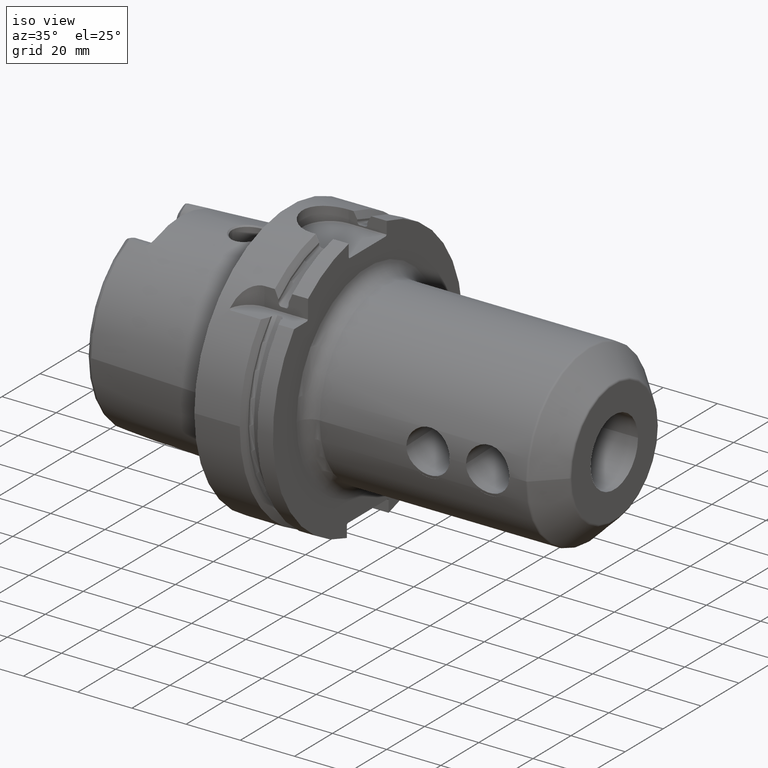
[diagram: clean part render]
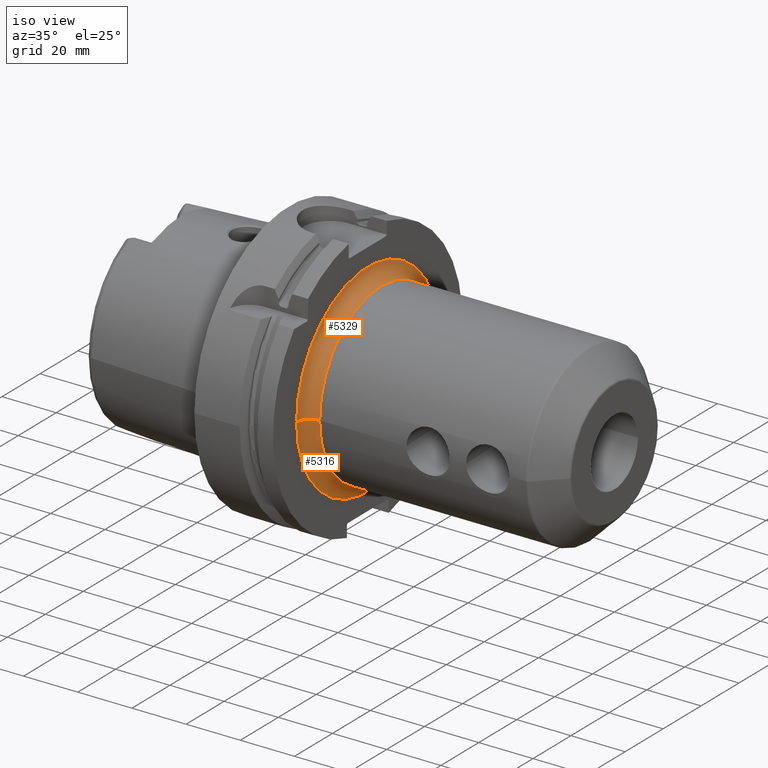
[diagram: same view with one multi-face feature highlighted, each face labeled with its STEP entity id]
A machine part, iso view. The highlighted faces form ONE feature: a constant-radius fillet chain: 2 tangent blend faces with common blend radius 5 mm. The faces share edges in the B-rep.
Their STEP definitions:
[1] entity #5329 (Torus):
#1096=CARTESIAN_POINT('',(2.9E1,0.E0,0.E0));
#1097=DIRECTION('',(1.E0,0.E0,0.E0));
#1098=DIRECTION('',(0.E0,1.E0,0.E0));
#1099=AXIS2_PLACEMENT_3D('',#1096,#1097,#1098);
#1810=CARTESIAN_POINT('',(3.4E1,-3.75E1,2.081668171172E-14));
#1811=DIRECTION('',(0.E0,0.E0,-1.E0));
#1812=DIRECTION('',(-1.E0,0.E0,0.E0));
#1813=AXIS2_PLACEMENT_3D('',#1810,#1811,#1812);
#1815=CARTESIAN_POINT('',(3.4E1,3.75E1,-2.563227408103E-14));
#1816=DIRECTION('',(0.E0,0.E0,1.E0));
#1817=DIRECTION('',(-1.E0,0.E0,0.E0));
#1818=AXIS2_PLACEMENT_3D('',#1815,#1816,#1817);
#1852=CARTESIAN_POINT('',(3.4E1,0.E0,0.E0));
#1853=DIRECTION('',(1.E0,0.E0,0.E0));
#1854=DIRECTION('',(0.E0,1.E0,0.E0));
#1855=AXIS2_PLACEMENT_3D('',#1852,#1853,#1854);
#3441=CARTESIAN_POINT('',(2.9E1,-3.75E1,0.E0));
#3442=CARTESIAN_POINT('',(2.9E1,3.75E1,0.E0));
#3443=VERTEX_POINT('',#3441);
#3444=VERTEX_POINT('',#3442);
#3445=CARTESIAN_POINT('',(3.4E1,-3.25E1,0.E0));
#3446=CARTESIAN_POINT('',(3.4E1,3.25E1,0.E0));
#3447=VERTEX_POINT('',#3445);
#3448=VERTEX_POINT('',#3446);
#5317=CARTESIAN_POINT('',(3.4E1,0.E0,0.E0));
#5318=DIRECTION('',(1.E0,0.E0,0.E0));
#5319=DIRECTION('',(0.E0,9.999972018240E-1,-2.365659331949E-3));
#5320=AXIS2_PLACEMENT_3D('',#5317,#5318,#5319);
#5321=TOROIDAL_SURFACE('',#5320,3.75E1,5.E0);
#5322=ORIENTED_EDGE('',*,*,#4584,.F.);
#5323=ORIENTED_EDGE('',*,*,#5312,.T.);
#5325=ORIENTED_EDGE('',*,*,#5324,.T.);
#5326=ORIENTED_EDGE('',*,*,#5308,.F.);
#5327=EDGE_LOOP('',(#5322,#5323,#5325,#5326));
#5328=FACE_OUTER_BOUND('',#5327,.F.);
#5329=ADVANCED_FACE('',(#5328),#5321,.F.);
#1100=CIRCLE('',#1099,3.75E1);
#1814=CIRCLE('',#1813,5.E0);
#1819=CIRCLE('',#1818,5.E0);
#1856=CIRCLE('',#1855,3.25E1);
#4584=EDGE_CURVE('',#3444,#3443,#1100,.T.);
#5308=EDGE_CURVE('',#3443,#3447,#1814,.T.);
#5312=EDGE_CURVE('',#3444,#3448,#1819,.T.);
#5324=EDGE_CURVE('',#3448,#3447,#1856,.T.);
[2] entity #5316 (Torus):
#1091=CARTESIAN_POINT('',(2.9E1,0.E0,0.E0));
#1092=DIRECTION('',(1.E0,0.E0,0.E0));
#1093=DIRECTION('',(0.E0,-1.E0,0.E0));
#1094=AXIS2_PLACEMENT_3D('',#1091,#1092,#1093);
#1810=CARTESIAN_POINT('',(3.4E1,-3.75E1,2.081668171172E-14));
#1811=DIRECTION('',(0.E0,0.E0,-1.E0));
#1812=DIRECTION('',(-1.E0,0.E0,0.E0));
#1813=AXIS2_PLACEMENT_3D('',#1810,#1811,#1812);
#1815=CARTESIAN_POINT('',(3.4E1,3.75E1,-2.563227408103E-14));
#1816=DIRECTION('',(0.E0,0.E0,1.E0));
#1817=DIRECTION('',(-1.E0,0.E0,0.E0));
#1818=AXIS2_PLACEMENT_3D('',#1815,#1816,#1817);
#2143=CARTESIAN_POINT('',(3.4E1,0.E0,0.E0));
#2144=DIRECTION('',(1.E0,0.E0,0.E0));
#2145=DIRECTION('',(0.E0,-1.E0,0.E0));
#2146=AXIS2_PLACEMENT_3D('',#2143,#2144,#2145);
#3441=CARTESIAN_POINT('',(2.9E1,-3.75E1,0.E0));
#3442=CARTESIAN_POINT('',(2.9E1,3.75E1,0.E0));
#3443=VERTEX_POINT('',#3441);
#3444=VERTEX_POINT('',#3442);
#3445=CARTESIAN_POINT('',(3.4E1,-3.25E1,0.E0));
#3446=CARTESIAN_POINT('',(3.4E1,3.25E1,0.E0));
#3447=VERTEX_POINT('',#3445);
#3448=VERTEX_POINT('',#3446);
#5302=CARTESIAN_POINT('',(3.4E1,0.E0,0.E0));
#5303=DIRECTION('',(1.E0,0.E0,0.E0));
#5304=DIRECTION('',(0.E0,-9.999972018240E-1,2.365659331949E-3));
#5305=AXIS2_PLACEMENT_3D('',#5302,#5303,#5304);
#5306=TOROIDAL_SURFACE('',#5305,3.75E1,5.E0);
#5307=ORIENTED_EDGE('',*,*,#4582,.F.);
#5309=ORIENTED_EDGE('',*,*,#5308,.T.);
#5311=ORIENTED_EDGE('',*,*,#5310,.T.);
#5313=ORIENTED_EDGE('',*,*,#5312,.F.);
#5314=EDGE_LOOP('',(#5307,#5309,#5311,#5313));
#5315=FACE_OUTER_BOUND('',#5314,.F.);
#5316=ADVANCED_FACE('',(#5315),#5306,.F.);
#1095=CIRCLE('',#1094,3.75E1);
#1814=CIRCLE('',#1813,5.E0);
#1819=CIRCLE('',#1818,5.E0);
#2147=CIRCLE('',#2146,3.25E1);
#4582=EDGE_CURVE('',#3443,#3444,#1095,.T.);
#5308=EDGE_CURVE('',#3443,#3447,#1814,.T.);
#5310=EDGE_CURVE('',#3447,#3448,#2147,.T.);
#5312=EDGE_CURVE('',#3444,#3448,#1819,.T.);